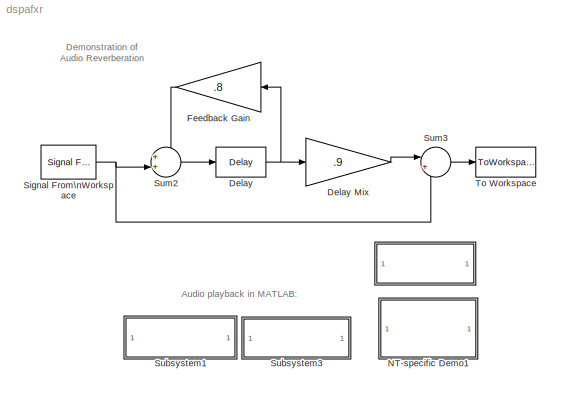
MODEL dspafxr
KIND model
CONFIG AbsTol = 1e-6
CONFIG FixedStep = auto
CONFIG MaxStep = auto
CONFIG MinStep = auto
CONFIG PreLoadFcn = load dspafxr;
CONFIG RelTol = 1e-3
CONFIG Solver = FixedStepDiscrete
CONFIG SolverMode = SingleTasking
CONFIG StartTime = 0.0
CONFIG StopTime = 2
BLOCK [SubSystem]   
  MaskDisplay = disp('Info')
  MaskIconFrame = on
  MaskIconOpaque = on
  MaskIconRotate = none
  MaskIconUnits = autoscale
  MaskType = Frame-Based Simulation Info
  Ports = []
  TreatAsAtomicUnit = off
BLOCK [Reference] Delay  REF=dspsigops/Delay
  Ports = [1, 1]
  SourceBlock = dspsigops/Delay
  SourceType = Delay
  delay = 1800
  dif_ic_for_ch = off
  dif_ic_for_dly = off
  dly_unit = Samples
  ic = 0
  ic_detail = on
  reset_popup = None
BLOCK [Gain] Delay Mix
  Gain = .9
BLOCK [Gain] Feedback Gain
  Gain = .8
BLOCK [SubSystem] NT-specific Demo1
  MaskDisplay = disp('PC/Windows\\nDemo')
  MaskIconFrame = on
  MaskIconOpaque = on
  MaskIconRotate = none
  MaskIconUnits = autoscale
  MaskType = NT-only Demo
  OpenFcn = dspafxr_win32
  Ports = []
  TreatAsAtomicUnit = off
BLOCK [Reference] Signal From\nWorkspace  REF=dspsrcs4/Signal From\nWorkspace
  OutputAfterFinalValue = Setting to zero
  Ports = [0, 1]
  ShowPortLabels = on
  SourceBlock = dspsrcs4/Signal From\nWorkspace
  SourceType = Signal From Workspace
  Ts = 1/fs_afxr
  X = x_afxr
  nsamps = 128
BLOCK [SubSystem] Subsystem1
  MaskDisplay = disp('Original\\nSignal')
  MaskIconFrame = on
  MaskIconOpaque = on
  MaskIconRotate = none
  MaskIconUnits = autoscale
  OpenFcn = if exist('x_afxr','var') & exist('fs_afxr','var'), sound(x_afxr,fs_afxr); else errordlg('Data not found in workspace - reload demo model.','Signal Processing Blockset Demo Error'); end
  Ports = []
  TreatAsAtomicUnit = off
BLOCK [SubSystem] Subsystem3
  MaskDisplay = disp('Enhanced\\nSignal')
  MaskIconFrame = on
  MaskIconOpaque = on
  MaskIconRotate = none
  MaskIconUnits = autoscale
  OpenFcn = if exist('y_afxr','var') & exist('fs_afxr','var'), sound(y_afxr,fs_afxr); else errordlg('You must run the simulation first.','Signal Processing Blockset Demo Error'); end
  Ports = []
  TreatAsAtomicUnit = off
BLOCK [Sum] Sum2
  IconShape = round
  Inputs = ++|
  Ports = [2, 1]
BLOCK [Sum] Sum3
  IconShape = round
  Inputs = |++
  Ports = [2, 1]
BLOCK [ToWorkspace] To Workspace
  MaxDataPoints = inf
  SampleTime = -1
  SaveFormat = Array
  VariableName = y_afxr
ANNOTATION (root): Demonstration of\nAudio Reverberation
ANNOTATION (root): \n Audio playback in MATLAB:\n
ANNOTATION   : This simulation of audio reverberation\nemploys frame-based processing.\n\nBy default, the simulation uses\n128 samples per frame.
LINE Delay Mix:1 -> Sum3:1
NET Delay:1 -> Delay Mix:1, Feedback Gain:1
LINE Feedback Gain:1 -> Sum2:1
NET Signal From\nWorkspace:1 -> Sum2:2, Sum3:2
LINE Sum2:1 -> Delay:1
LINE Sum3:1 -> To Workspace:1
note: NET lines group one-source signal fan-out (src -> all destinations, sorted); 1:1 wires keep LINE
